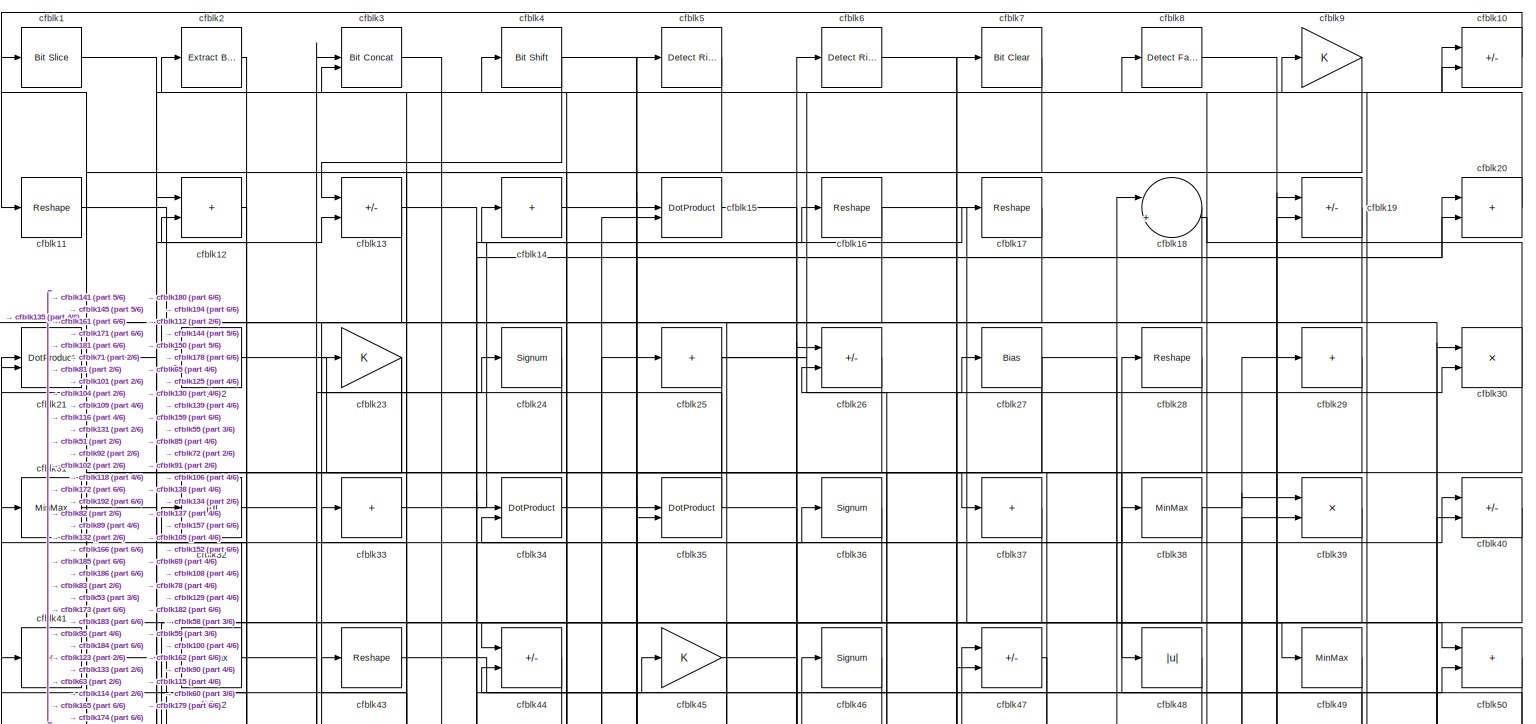
[diagram: root canvas - part 1/6, full width, top band]
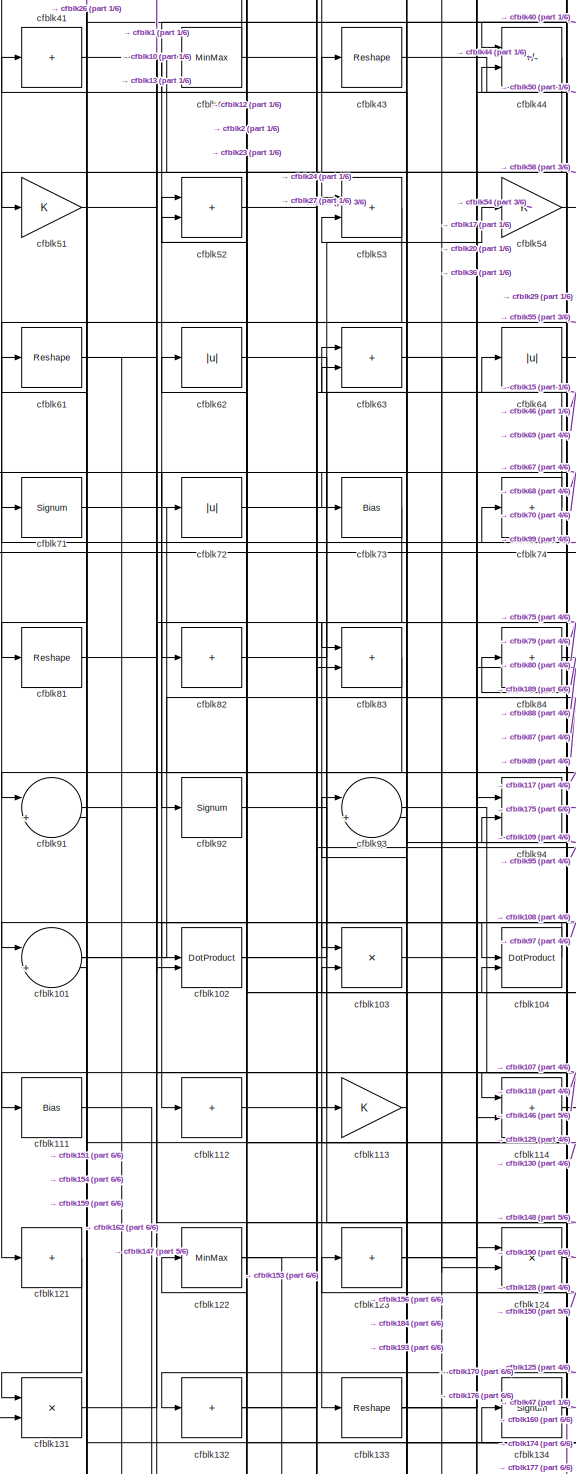
[diagram: root canvas - part 2/6, middle left region]
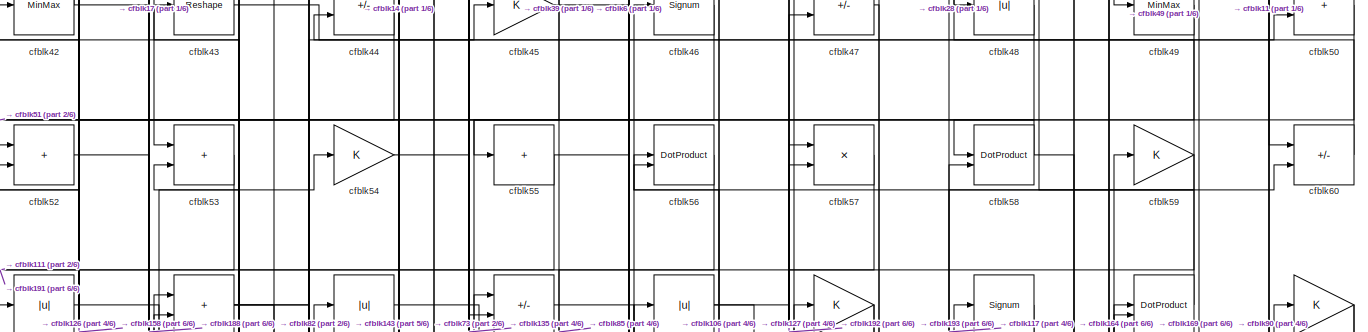
[diagram: root canvas - part 3/6, full width, top band]
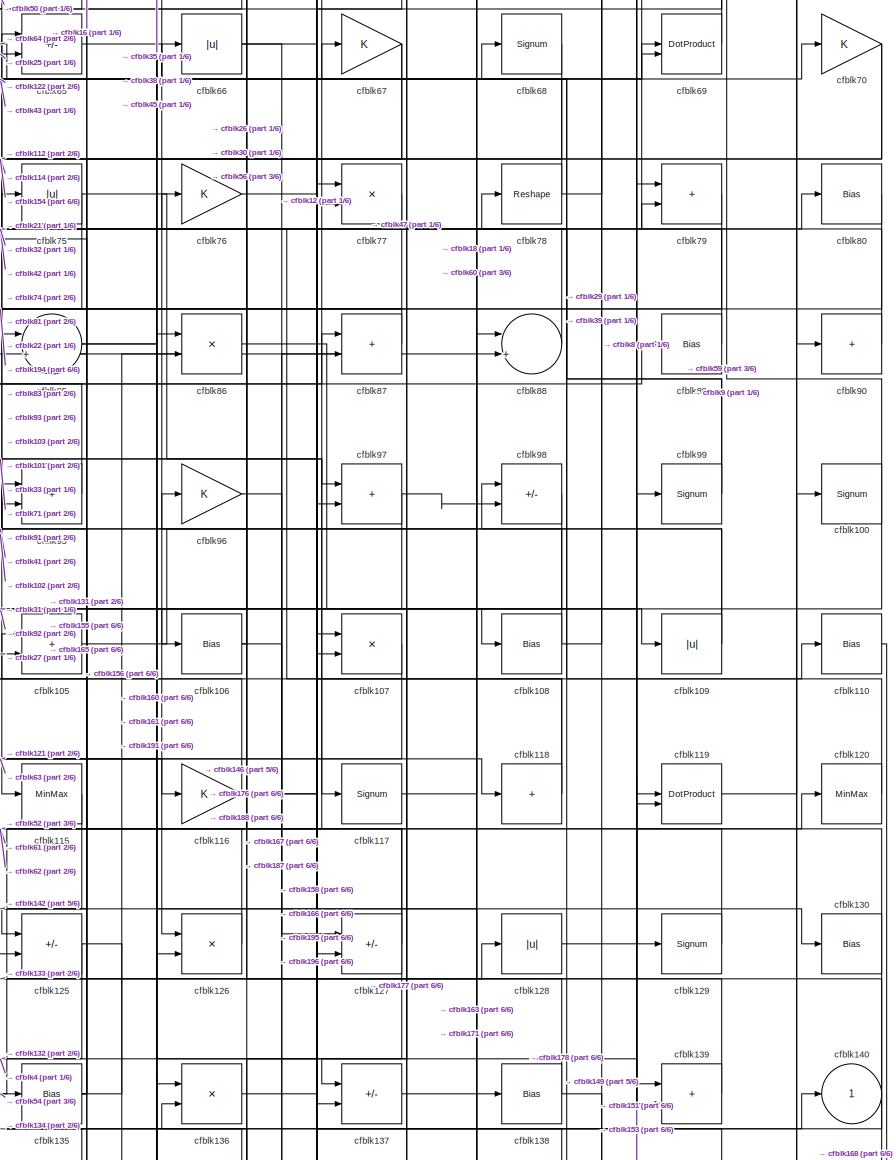
[diagram: root canvas - part 4/6, middle right region]
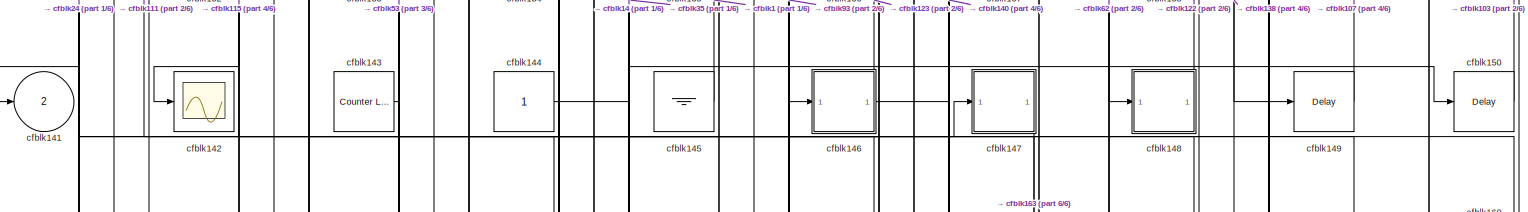
[diagram: root canvas - part 5/6, full width, bottom band]
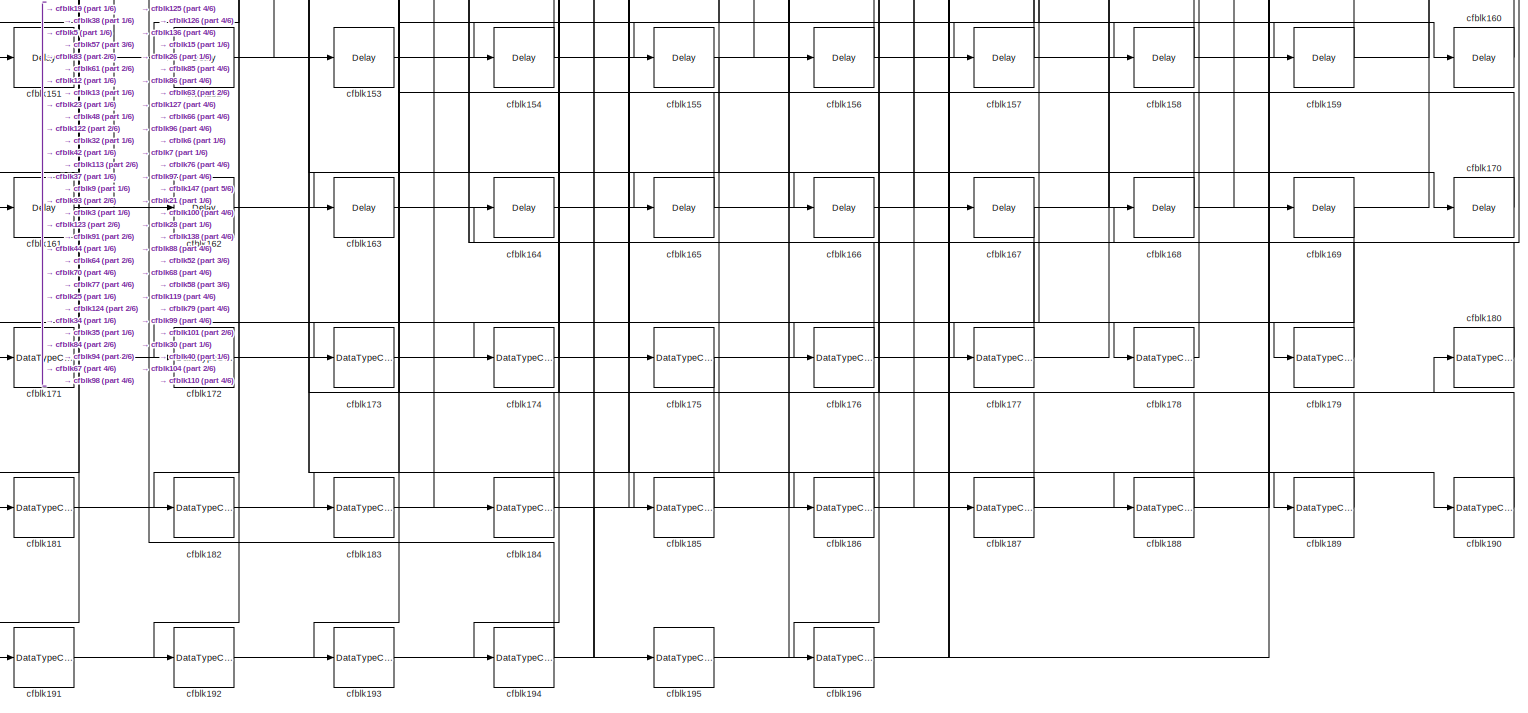
[diagram: root canvas - part 6/6, full width, bottom band]
MODEL slx_b7613c27cf03
KIND model
CONFIG AbsTol = auto
CONFIG EnableMultiTasking = off
CONFIG FixedStep = auto
CONFIG MaxStep = auto
CONFIG MinStep = auto
CONFIG RelTol = 1e-3
CONFIG SampleTimeConstraint = Unconstrained
CONFIG SolverName = VariableStepAuto
CONFIG StartTime = 0.0
CONFIG StopTime = 10.0
BLOCK [Reference] cfblk1  REF=hdlsllib/Logic and Bit
Operations/Bit Slice
  SourceBlock = hdlsllib/Logic and Bit\nOperations/Bit Slice
  SourceType = Bit Slice
BLOCK [Sum] cfblk10
  IconShape = rectangular
  Inputs = +-
BLOCK [Signum] cfblk100
BLOCK [Sum] cfblk101
  Inputs = |++
BLOCK [DotProduct] cfblk102
  OutDataTypeStr = Inherit: Inherit via internal rule
BLOCK [Product] cfblk103
  Inputs = */
  RndMeth = Zero
  SaturateOnIntegerOverflow = on
BLOCK [DotProduct] cfblk104
  OutDataTypeStr = Inherit: Inherit via internal rule
BLOCK [Sum] cfblk105
  IconShape = rectangular
BLOCK [Bias] cfblk106
  Bias = 0.0
  SaturateOnIntegerOverflow = off
BLOCK [Product] cfblk107
  Inputs = */
  RndMeth = Zero
  SaturateOnIntegerOverflow = on
BLOCK [Bias] cfblk108
  Bias = 0.0
  SaturateOnIntegerOverflow = off
BLOCK [Abs] cfblk109
  SaturateOnIntegerOverflow = off
BLOCK [Reshape] cfblk11
BLOCK [Bias] cfblk110
  Bias = 0.0
  SaturateOnIntegerOverflow = off
BLOCK [Bias] cfblk111
  Bias = 0.0
  SaturateOnIntegerOverflow = off
BLOCK [Sum] cfblk112
  IconShape = rectangular
  Inputs = +
BLOCK [Gain] cfblk113
BLOCK [Sum] cfblk114
  IconShape = rectangular
BLOCK [MinMax] cfblk115
BLOCK [Gain] cfblk116
BLOCK [Signum] cfblk117
BLOCK [Sum] cfblk118
  IconShape = rectangular
  Inputs = +
BLOCK [DotProduct] cfblk119
  OutDataTypeStr = Inherit: Inherit via internal rule
BLOCK [Sum] cfblk12
  IconShape = rectangular
BLOCK [MinMax] cfblk120
BLOCK [Sum] cfblk121
  IconShape = rectangular
  Inputs = +
BLOCK [MinMax] cfblk122
BLOCK [Sum] cfblk123
  IconShape = rectangular
  Inputs = +
BLOCK [Product] cfblk124
  Inputs = */
  RndMeth = Zero
  SaturateOnIntegerOverflow = on
BLOCK [Sum] cfblk125
  IconShape = rectangular
  Inputs = +-
BLOCK [Product] cfblk126
  Inputs = */
  RndMeth = Zero
  SaturateOnIntegerOverflow = on
BLOCK [Sum] cfblk127
  IconShape = rectangular
  Inputs = +-
BLOCK [Abs] cfblk128
  SaturateOnIntegerOverflow = off
BLOCK [Signum] cfblk129
BLOCK [Sum] cfblk13
  IconShape = rectangular
  Inputs = +-
BLOCK [Bias] cfblk130
  Bias = 0.0
  SaturateOnIntegerOverflow = off
BLOCK [Product] cfblk131
  Inputs = */
  RndMeth = Zero
  SaturateOnIntegerOverflow = on
BLOCK [Sum] cfblk132
  IconShape = rectangular
  Inputs = +
BLOCK [Reshape] cfblk133
BLOCK [Signum] cfblk134
BLOCK [Bias] cfblk135
  Bias = 0.0
  SaturateOnIntegerOverflow = off
BLOCK [Product] cfblk136
  Inputs = */
  RndMeth = Zero
  SaturateOnIntegerOverflow = on
BLOCK [Sum] cfblk137
  IconShape = rectangular
  Inputs = +-
BLOCK [Bias] cfblk138
  Bias = 0.0
  SaturateOnIntegerOverflow = off
BLOCK [Sum] cfblk139
  IconShape = rectangular
BLOCK [Sum] cfblk14
  IconShape = rectangular
  Inputs = +
BLOCK [Outport] cfblk140
  VectorParamsAs1DForOutWhenUnconnected = off
BLOCK [Outport] cfblk141
  Port = 2
  VectorParamsAs1DForOutWhenUnconnected = off
BLOCK [Scope] cfblk142
  Floating = off
  NumInputPorts = 1
  ScopeSpecificationString = Simulink.scopes.TimeScopeBlockCfg('CurrentConfiguration', extmgr.ConfigurationSet(extmgr.Configuration('Core','General UI',true),extmgr.Configuration('Core','Source UI',true),extmgr.Configuration('Sources','WiredSimulink',true,'DataLoggingVariableName','ScopeData2','DataLoggingSaveFormat','Array','DataLoggingLimitDataPoints',true,'DataLoggingDecimation','1'),extmgr.Configuration('Visuals','Time Do...<+868ch>
BLOCK [Reference] cfblk143  REF=hdlsllib/Sources/Counter
Limited
  SourceBlock = hdlsllib/Sources/Counter\nLimited
  SourceType = Counter Limited
BLOCK [Constant] cfblk144
  SampleTime = -1
BLOCK [Ground] cfblk145
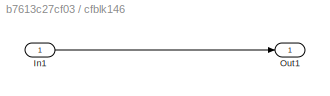
BLOCK [SubSystem] cfblk146
  LibrarySourceBlock = hdlsllib/Ports &\nSubsystems/Subsystem
BLOCK [Inport] cfblk146/In1
BLOCK [Outport] cfblk146/Out1
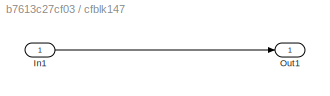
BLOCK [SubSystem] cfblk147
  LibrarySourceBlock = hdlsllib/Ports &\nSubsystems/Subsystem
BLOCK [Inport] cfblk147/In1
BLOCK [Outport] cfblk147/Out1
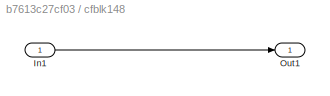
BLOCK [SubSystem] cfblk148
  LibrarySourceBlock = hdlsllib/Ports &\nSubsystems/Subsystem
BLOCK [Inport] cfblk148/In1
BLOCK [Outport] cfblk148/Out1
BLOCK [Delay] cfblk149
  InputPortMap = u0
  SampleTime = 1
BLOCK [DotProduct] cfblk15
  OutDataTypeStr = Inherit: Inherit via internal rule
BLOCK [Delay] cfblk150
  InputPortMap = u0
  SampleTime = 1
BLOCK [Delay] cfblk151
  InputPortMap = u0
  SampleTime = 1
BLOCK [Delay] cfblk152
  InputPortMap = u0
  SampleTime = 1
BLOCK [Delay] cfblk153
  InputPortMap = u0
  SampleTime = 1
BLOCK [Delay] cfblk154
  InputPortMap = u0
  SampleTime = 1
BLOCK [Delay] cfblk155
  InputPortMap = u0
  SampleTime = 1
BLOCK [Delay] cfblk156
  InputPortMap = u0
  SampleTime = 1
BLOCK [Delay] cfblk157
  InputPortMap = u0
  SampleTime = 1
BLOCK [Delay] cfblk158
  InputPortMap = u0
  SampleTime = 1
BLOCK [Delay] cfblk159
  InputPortMap = u0
  SampleTime = 1
BLOCK [Reshape] cfblk16
BLOCK [Delay] cfblk160
  InputPortMap = u0
  SampleTime = 1
BLOCK [Delay] cfblk161
  InputPortMap = u0
  SampleTime = 1
BLOCK [Delay] cfblk162
  InputPortMap = u0
  SampleTime = 1
BLOCK [Delay] cfblk163
  InputPortMap = u0
  SampleTime = 1
BLOCK [Delay] cfblk164
  InputPortMap = u0
  SampleTime = 1
BLOCK [Delay] cfblk165
  InputPortMap = u0
  SampleTime = 1
BLOCK [Delay] cfblk166
  InputPortMap = u0
  SampleTime = 1
BLOCK [Delay] cfblk167
  InputPortMap = u0
  SampleTime = 1
BLOCK [Delay] cfblk168
  InputPortMap = u0
  SampleTime = 1
BLOCK [Delay] cfblk169
  InputPortMap = u0
  SampleTime = 1
BLOCK [Reshape] cfblk17
BLOCK [Delay] cfblk170
  InputPortMap = u0
  SampleTime = 1
BLOCK [DataTypeConversion] cfblk171
  OutDataTypeStr = uint8
  RndMeth = Floor
  SaturateOnIntegerOverflow = off
BLOCK [DataTypeConversion] cfblk172
  OutDataTypeStr = uint8
  RndMeth = Floor
  SaturateOnIntegerOverflow = off
BLOCK [DataTypeConversion] cfblk173
  OutDataTypeStr = boolean
  RndMeth = Floor
  SaturateOnIntegerOverflow = off
BLOCK [DataTypeConversion] cfblk174
  OutDataTypeStr = uint8
  RndMeth = Floor
  SaturateOnIntegerOverflow = off
BLOCK [DataTypeConversion] cfblk175
  OutDataTypeStr = uint8
  RndMeth = Floor
  SaturateOnIntegerOverflow = off
BLOCK [DataTypeConversion] cfblk176
  OutDataTypeStr = uint8
  RndMeth = Floor
  SaturateOnIntegerOverflow = off
BLOCK [DataTypeConversion] cfblk177
  OutDataTypeStr = uint8
  RndMeth = Floor
  SaturateOnIntegerOverflow = off
BLOCK [DataTypeConversion] cfblk178
  OutDataTypeStr = uint8
  RndMeth = Floor
  SaturateOnIntegerOverflow = off
BLOCK [DataTypeConversion] cfblk179
  OutDataTypeStr = uint8
  RndMeth = Floor
  SaturateOnIntegerOverflow = off
BLOCK [Sum] cfblk18
  Inputs = |++
BLOCK [DataTypeConversion] cfblk180
  OutDataTypeStr = uint8
  RndMeth = Floor
  SaturateOnIntegerOverflow = off
BLOCK [DataTypeConversion] cfblk181
  RndMeth = Floor
  SaturateOnIntegerOverflow = off
BLOCK [DataTypeConversion] cfblk182
  OutDataTypeStr = uint8
  RndMeth = Floor
  SaturateOnIntegerOverflow = off
BLOCK [DataTypeConversion] cfblk183
  OutDataTypeStr = uint8
  RndMeth = Floor
  SaturateOnIntegerOverflow = off
BLOCK [DataTypeConversion] cfblk184
  RndMeth = Floor
  SaturateOnIntegerOverflow = off
BLOCK [DataTypeConversion] cfblk185
  OutDataTypeStr = uint8
  RndMeth = Floor
  SaturateOnIntegerOverflow = off
BLOCK [DataTypeConversion] cfblk186
  OutDataTypeStr = uint8
  RndMeth = Floor
  SaturateOnIntegerOverflow = off
BLOCK [DataTypeConversion] cfblk187
  RndMeth = Floor
  SaturateOnIntegerOverflow = off
BLOCK [DataTypeConversion] cfblk188
  OutDataTypeStr = uint8
  RndMeth = Floor
  SaturateOnIntegerOverflow = off
BLOCK [DataTypeConversion] cfblk189
  OutDataTypeStr = uint8
  RndMeth = Floor
  SaturateOnIntegerOverflow = off
BLOCK [Sum] cfblk19
  IconShape = rectangular
  Inputs = +-
BLOCK [DataTypeConversion] cfblk190
  OutDataTypeStr = uint8
  RndMeth = Floor
  SaturateOnIntegerOverflow = off
BLOCK [DataTypeConversion] cfblk191
  RndMeth = Floor
  SaturateOnIntegerOverflow = off
BLOCK [DataTypeConversion] cfblk192
  OutDataTypeStr = uint8
  RndMeth = Floor
  SaturateOnIntegerOverflow = off
BLOCK [DataTypeConversion] cfblk193
  OutDataTypeStr = uint8
  RndMeth = Floor
  SaturateOnIntegerOverflow = off
BLOCK [DataTypeConversion] cfblk194
  RndMeth = Floor
  SaturateOnIntegerOverflow = off
BLOCK [DataTypeConversion] cfblk195
  OutDataTypeStr = uint8
  RndMeth = Floor
  SaturateOnIntegerOverflow = off
BLOCK [DataTypeConversion] cfblk196
  OutDataTypeStr = uint8
  RndMeth = Floor
  SaturateOnIntegerOverflow = off
BLOCK [Reference] cfblk2  REF=simulink/Logic and Bit
Operations/Extract Bits
  LibrarySourceBlock = hdlsllib/Logic and Bit\nOperations/Extract Bits
  SourceBlock = simulink/Logic and Bit\nOperations/Extract Bits
  SourceType = Extract Bits
BLOCK [Sum] cfblk20
  IconShape = rectangular
BLOCK [DotProduct] cfblk21
  OutDataTypeStr = Inherit: Inherit via internal rule
BLOCK [Sum] cfblk22
  IconShape = rectangular
BLOCK [Gain] cfblk23
BLOCK [Signum] cfblk24
BLOCK [Sum] cfblk25
  IconShape = rectangular
  Inputs = +
BLOCK [Sum] cfblk26
  IconShape = rectangular
  Inputs = +-
BLOCK [Bias] cfblk27
  Bias = 0.0
  SaturateOnIntegerOverflow = off
BLOCK [Reshape] cfblk28
BLOCK [Sum] cfblk29
  IconShape = rectangular
  Inputs = +
BLOCK [Reference] cfblk3  REF=hdlsllib/Logic and Bit
Operations/Bit Concat
  SourceBlock = hdlsllib/Logic and Bit\nOperations/Bit Concat
  SourceType = Bit Concat
BLOCK [Product] cfblk30
  Inputs = */
  RndMeth = Zero
  SaturateOnIntegerOverflow = on
BLOCK [MinMax] cfblk31
BLOCK [Abs] cfblk32
  SaturateOnIntegerOverflow = off
BLOCK [Sum] cfblk33
  IconShape = rectangular
  Inputs = +
BLOCK [DotProduct] cfblk34
  OutDataTypeStr = Inherit: Inherit via internal rule
BLOCK [DotProduct] cfblk35
  OutDataTypeStr = Inherit: Inherit via internal rule
BLOCK [Signum] cfblk36
BLOCK [Sum] cfblk37
  IconShape = rectangular
  Inputs = +
BLOCK [MinMax] cfblk38
BLOCK [Product] cfblk39
  Inputs = */
  RndMeth = Zero
  SaturateOnIntegerOverflow = on
BLOCK [Reference] cfblk4  REF=hdlsllib/Logic and Bit
Operations/Bit Shift
  SourceBlock = hdlsllib/Logic and Bit\nOperations/Bit Shift
  SourceType = Bit Shift
BLOCK [Sum] cfblk40
  IconShape = rectangular
  Inputs = +-
BLOCK [Sum] cfblk41
  IconShape = rectangular
  Inputs = +
BLOCK [MinMax] cfblk42
BLOCK [Reshape] cfblk43
BLOCK [Sum] cfblk44
  IconShape = rectangular
  Inputs = +-
BLOCK [Gain] cfblk45
BLOCK [Signum] cfblk46
BLOCK [Sum] cfblk47
  IconShape = rectangular
  Inputs = +-
BLOCK [Abs] cfblk48
  SaturateOnIntegerOverflow = off
BLOCK [MinMax] cfblk49
BLOCK [Reference] cfblk5  REF=hdlsllib/Logic and Bit
Operations/Detect Rise
Positive
  SourceBlock = hdlsllib/Logic and Bit\nOperations/Detect Rise\nPositive
  SourceType = Detect Rise Positive
BLOCK [Sum] cfblk50
  IconShape = rectangular
BLOCK [Gain] cfblk51
BLOCK [Sum] cfblk52
  IconShape = rectangular
BLOCK [Sum] cfblk53
  IconShape = rectangular
BLOCK [Gain] cfblk54
BLOCK [Sum] cfblk55
  IconShape = rectangular
  Inputs = +
BLOCK [DotProduct] cfblk56
  OutDataTypeStr = Inherit: Inherit via internal rule
BLOCK [Product] cfblk57
  Inputs = */
  RndMeth = Zero
  SaturateOnIntegerOverflow = on
BLOCK [DotProduct] cfblk58
  OutDataTypeStr = Inherit: Inherit via internal rule
BLOCK [Gain] cfblk59
BLOCK [Reference] cfblk6  REF=hdlsllib/Logic and Bit
Operations/Detect Rise
Positive
  SourceBlock = hdlsllib/Logic and Bit\nOperations/Detect Rise\nPositive
  SourceType = Detect Rise Positive
BLOCK [Sum] cfblk60
  IconShape = rectangular
  Inputs = +-
BLOCK [Reshape] cfblk61
BLOCK [Abs] cfblk62
  SaturateOnIntegerOverflow = off
BLOCK [Sum] cfblk63
  IconShape = rectangular
BLOCK [Abs] cfblk64
  SaturateOnIntegerOverflow = off
BLOCK [Sum] cfblk65
  IconShape = rectangular
  Inputs = +-
BLOCK [Abs] cfblk66
  SaturateOnIntegerOverflow = off
BLOCK [Gain] cfblk67
BLOCK [Signum] cfblk68
BLOCK [DotProduct] cfblk69
  OutDataTypeStr = Inherit: Inherit via internal rule
BLOCK [Reference] cfblk7  REF=simulink/Logic and Bit
Operations/Bit Clear
  LibrarySourceBlock = hdlsllib/Logic and Bit\nOperations/Bit Clear
  SourceBlock = simulink/Logic and Bit\nOperations/Bit Clear
  SourceType = Bit Clear
BLOCK [Gain] cfblk70
BLOCK [Signum] cfblk71
BLOCK [Abs] cfblk72
  SaturateOnIntegerOverflow = off
BLOCK [Bias] cfblk73
  Bias = 0.0
  SaturateOnIntegerOverflow = off
BLOCK [Sum] cfblk74
  IconShape = rectangular
  Inputs = +
BLOCK [Abs] cfblk75
  SaturateOnIntegerOverflow = off
BLOCK [Gain] cfblk76
BLOCK [Product] cfblk77
  Inputs = */
  RndMeth = Zero
  SaturateOnIntegerOverflow = on
BLOCK [Reshape] cfblk78
BLOCK [Sum] cfblk79
  IconShape = rectangular
BLOCK [Reference] cfblk8  REF=hdlsllib/Logic and Bit
Operations/Detect Fall
Negative
  SourceBlock = hdlsllib/Logic and Bit\nOperations/Detect Fall\nNegative
  SourceType = Detect Fall Negative
BLOCK [Bias] cfblk80
  Bias = 0.0
  SaturateOnIntegerOverflow = off
BLOCK [Reshape] cfblk81
BLOCK [Sum] cfblk82
  IconShape = rectangular
  Inputs = +
BLOCK [Sum] cfblk83
  IconShape = rectangular
BLOCK [Sum] cfblk84
  IconShape = rectangular
  Inputs = +
BLOCK [Sum] cfblk85
  Inputs = |++
BLOCK [Product] cfblk86
  Inputs = */
  RndMeth = Zero
  SaturateOnIntegerOverflow = on
BLOCK [Sum] cfblk87
  IconShape = rectangular
BLOCK [Sum] cfblk88
  Inputs = |++
BLOCK [Bias] cfblk89
  Bias = 0.0
  SaturateOnIntegerOverflow = off
BLOCK [Gain] cfblk9
BLOCK [Sum] cfblk90
  IconShape = rectangular
  Inputs = +
BLOCK [Sum] cfblk91
  Inputs = |++
BLOCK [Signum] cfblk92
BLOCK [Sum] cfblk93
  Inputs = |++
BLOCK [Sum] cfblk94
  IconShape = rectangular
BLOCK [Sum] cfblk95
  IconShape = rectangular
BLOCK [Gain] cfblk96
BLOCK [Sum] cfblk97
  IconShape = rectangular
BLOCK [Sum] cfblk98
  IconShape = rectangular
  Inputs = +-
BLOCK [Signum] cfblk99
NET cfblk100:1 -> cfblk177:1, cfblk9:1
NET cfblk101:1 -> cfblk10:2, cfblk89:1
NET cfblk102:1 -> cfblk87:1, cfblk95:1
LINE cfblk103:1 -> cfblk88:2
LINE cfblk104:1 -> cfblk103:1
LINE cfblk105:1 -> cfblk18:1
NET cfblk106:1 -> cfblk127:1, cfblk56:1
LINE cfblk107:1 -> cfblk121:1
NET cfblk108:1 -> cfblk39:2, cfblk65:1
NET cfblk109:1 -> cfblk41:1, cfblk98:1
LINE cfblk10:1 -> cfblk11:1
LINE cfblk110:1 -> cfblk168:1
LINE cfblk111:1 -> cfblk147:1
LINE cfblk112:1 -> cfblk15:1
LINE cfblk113:1 -> cfblk193:1
LINE cfblk114:1 -> cfblk20:2
LINE cfblk115:1 -> cfblk142:1
NET cfblk116:1 -> cfblk12:2, cfblk30:2, cfblk47:2, cfblk87:2
LINE cfblk117:1 -> cfblk60:2
NET cfblk118:1 -> cfblk21:1, cfblk42:1
LINE cfblk119:1 -> cfblk100:1
LINE cfblk11:1 -> cfblk60:1
LINE cfblk120:1 -> cfblk78:1
LINE cfblk121:1 -> cfblk131:1
NET cfblk122:1 -> cfblk153:1, cfblk69:1
NET cfblk123:1 -> cfblk170:1, cfblk36:1
LINE cfblk124:1 -> cfblk190:1
NET cfblk125:1 -> cfblk132:1, cfblk156:1
LINE cfblk126:1 -> cfblk52:1
NET cfblk127:1 -> cfblk105:1, cfblk176:1, cfblk76:1
LINE cfblk128:1 -> cfblk120:1
LINE cfblk129:1 -> cfblk62:1
LINE cfblk12:1 -> cfblk102:1
NET cfblk130:1 -> cfblk134:1, cfblk61:1
LINE cfblk131:1 -> cfblk13:2
NET cfblk132:1 -> cfblk24:1, cfblk67:1
NET cfblk133:1 -> cfblk128:1, cfblk17:1, cfblk20:1
LINE cfblk134:1 -> cfblk47:1
NET cfblk135:1 -> cfblk22:1, cfblk86:2, cfblk95:2
LINE cfblk136:1 -> cfblk110:1
LINE cfblk137:1 -> cfblk79:2
NET cfblk138:1 -> cfblk149:1, cfblk26:2
LINE cfblk139:1 -> cfblk4:1
NET cfblk13:1 -> cfblk172:1, cfblk50:1
LINE cfblk143:1 -> cfblk53:2
LINE cfblk144:1 -> cfblk35:2
LINE cfblk145:1 -> cfblk1:1
LINE cfblk146/In1:1 -> cfblk146/Out1:1
NET cfblk146:1 -> cfblk123:1, cfblk140:1
LINE cfblk147/In1:1 -> cfblk147/Out1:1
LINE cfblk147:1 -> cfblk163:1
LINE cfblk148/In1:1 -> cfblk148/Out1:1
LINE cfblk148:1 -> cfblk122:1
LINE cfblk149:1 -> cfblk107:1
LINE cfblk14:1 -> cfblk150:1
LINE cfblk150:1 -> cfblk103:2
LINE cfblk151:1 -> cfblk79:1
LINE cfblk152:1 -> cfblk40:2
LINE cfblk153:1 -> cfblk119:2
LINE cfblk154:1 -> cfblk91:2
LINE cfblk155:1 -> cfblk185:1
LINE cfblk156:1 -> cfblk63:2
LINE cfblk157:1 -> cfblk21:2
LINE cfblk158:1 -> cfblk52:2
LINE cfblk159:1 -> cfblk101:2
LINE cfblk15:1 -> cfblk159:1
LINE cfblk160:1 -> cfblk104:2
LINE cfblk161:1 -> cfblk126:2
LINE cfblk162:1 -> cfblk30:1
LINE cfblk163:1 -> cfblk88:1
LINE cfblk164:1 -> cfblk58:2
LINE cfblk165:1 -> cfblk44:2
LINE cfblk166:1 -> cfblk97:2
LINE cfblk167:1 -> cfblk182:1
LINE cfblk168:1 -> cfblk136:1
LINE cfblk169:1 -> cfblk196:1
NET cfblk16:1 -> cfblk125:1, cfblk90:1
LINE cfblk170:1 -> cfblk93:1
LINE cfblk171:1 -> cfblk138:1
LINE cfblk172:1 -> cfblk5:1
LINE cfblk173:1 -> cfblk7:1
LINE cfblk174:1 -> cfblk64:1
LINE cfblk175:1 -> cfblk180:1
LINE cfblk176:1 -> cfblk94:1
LINE cfblk177:1 -> cfblk94:2
LINE cfblk178:1 -> cfblk68:1
LINE cfblk179:1 -> cfblk34:1
LINE cfblk17:1 -> cfblk53:1
LINE cfblk180:1 -> cfblk34:2
NET cfblk181:1 -> cfblk26:1, cfblk35:1
LINE cfblk182:1 -> cfblk19:1
LINE cfblk183:1 -> cfblk19:2
NET cfblk184:1 -> cfblk113:1, cfblk195:1
LINE cfblk185:1 -> cfblk3:1
LINE cfblk186:1 -> cfblk3:2
NET cfblk187:1 -> cfblk119:1, cfblk136:2
LINE cfblk188:1 -> cfblk96:1
LINE cfblk189:1 -> cfblk164:1
LINE cfblk18:1 -> cfblk22:2
LINE cfblk190:1 -> cfblk84:1
NET cfblk191:1 -> cfblk86:1, cfblk99:1
LINE cfblk192:1 -> cfblk57:1
LINE cfblk193:1 -> cfblk57:2
NET cfblk194:1 -> cfblk12:1, cfblk15:2, cfblk25:1
LINE cfblk195:1 -> cfblk77:1
LINE cfblk196:1 -> cfblk77:2
LINE cfblk19:1 -> cfblk181:1
LINE cfblk1:1 -> cfblk104:1
LINE cfblk20:1 -> cfblk8:1
LINE cfblk21:1 -> cfblk116:1
LINE cfblk22:1 -> cfblk48:1
NET cfblk23:1 -> cfblk192:1, cfblk81:1
LINE cfblk24:1 -> cfblk141:1
NET cfblk25:1 -> cfblk10:1, cfblk27:1, cfblk65:2
LINE cfblk26:1 -> cfblk71:1
NET cfblk27:1 -> cfblk105:2, cfblk49:1, cfblk83:2
LINE cfblk28:1 -> cfblk157:1
LINE cfblk29:1 -> cfblk114:1
LINE cfblk2:1 -> cfblk82:1
NET cfblk30:1 -> cfblk106:1, cfblk2:1
LINE cfblk31:1 -> cfblk109:1
LINE cfblk32:1 -> cfblk186:1
LINE cfblk33:1 -> cfblk16:1
LINE cfblk34:1 -> cfblk178:1
NET cfblk35:1 -> cfblk139:2, cfblk23:1
LINE cfblk36:1 -> cfblk44:1
LINE cfblk37:1 -> cfblk173:1
NET cfblk38:1 -> cfblk161:1, cfblk39:1
LINE cfblk39:1 -> cfblk55:1
LINE cfblk3:1 -> cfblk184:1
LINE cfblk40:1 -> cfblk92:1
LINE cfblk41:1 -> cfblk124:1
NET cfblk42:1 -> cfblk166:1, cfblk31:1
LINE cfblk43:1 -> cfblk45:1
LINE cfblk44:1 -> cfblk72:1
LINE cfblk45:1 -> cfblk130:1
LINE cfblk46:1 -> cfblk91:1
LINE cfblk47:1 -> cfblk137:1
LINE cfblk48:1 -> cfblk152:1
LINE cfblk49:1 -> cfblk58:1
NET cfblk4:1 -> cfblk137:2, cfblk13:1, cfblk37:1
LINE cfblk50:1 -> cfblk115:1
LINE cfblk51:1 -> cfblk40:1
LINE cfblk52:1 -> cfblk188:1
LINE cfblk53:1 -> cfblk111:1
LINE cfblk54:1 -> cfblk135:1
NET cfblk55:1 -> cfblk6:1, cfblk73:1
LINE cfblk56:1 -> cfblk85:2
LINE cfblk57:1 -> cfblk191:1
NET cfblk58:1 -> cfblk169:1, cfblk51:1
NET cfblk59:1 -> cfblk127:2, cfblk28:1, cfblk56:2
LINE cfblk5:1 -> cfblk171:1
LINE cfblk60:1 -> cfblk14:1
NET cfblk61:1 -> cfblk125:2, cfblk162:1
LINE cfblk62:1 -> cfblk148:1
NET cfblk63:1 -> cfblk118:1, cfblk124:2, cfblk50:2
LINE cfblk64:1 -> cfblk70:1
LINE cfblk65:1 -> cfblk126:1
NET cfblk66:1 -> cfblk167:1, cfblk69:2
NET cfblk67:1 -> cfblk131:2, cfblk155:1
LINE cfblk68:1 -> cfblk112:1
LINE cfblk69:1 -> cfblk18:2
LINE cfblk6:1 -> cfblk179:1
NET cfblk70:1 -> cfblk114:2, cfblk154:1
LINE cfblk71:1 -> cfblk117:1
LINE cfblk72:1 -> cfblk46:1
LINE cfblk73:1 -> cfblk133:1
LINE cfblk74:1 -> cfblk63:1
NET cfblk75:1 -> cfblk107:2, cfblk93:2
LINE cfblk76:1 -> cfblk158:1
LINE cfblk77:1 -> cfblk194:1
NET cfblk78:1 -> cfblk29:1, cfblk43:1
LINE cfblk79:1 -> cfblk83:1
LINE cfblk7:1 -> cfblk174:1
LINE cfblk80:1 -> cfblk102:2
LINE cfblk81:1 -> cfblk80:1
LINE cfblk82:1 -> cfblk54:1
LINE cfblk83:1 -> cfblk151:1
LINE cfblk84:1 -> cfblk189:1
NET cfblk85:1 -> cfblk160:1, cfblk38:1
LINE cfblk86:1 -> cfblk139:1
LINE cfblk87:1 -> cfblk85:1
LINE cfblk88:1 -> cfblk75:1
LINE cfblk89:1 -> cfblk32:1
LINE cfblk8:1 -> cfblk129:1
LINE cfblk90:1 -> cfblk59:1
LINE cfblk91:1 -> cfblk97:1
LINE cfblk92:1 -> cfblk108:1
LINE cfblk93:1 -> cfblk146:1
LINE cfblk94:1 -> cfblk175:1
LINE cfblk95:1 -> cfblk33:1
LINE cfblk96:1 -> cfblk187:1
NET cfblk97:1 -> cfblk101:1, cfblk98:2
LINE cfblk98:1 -> cfblk165:1
NET cfblk99:1 -> cfblk66:1, cfblk74:1
LINE cfblk9:1 -> cfblk183:1
note: NET lines group one-source signal fan-out (src -> all destinations, sorted); 1:1 wires keep LINE
